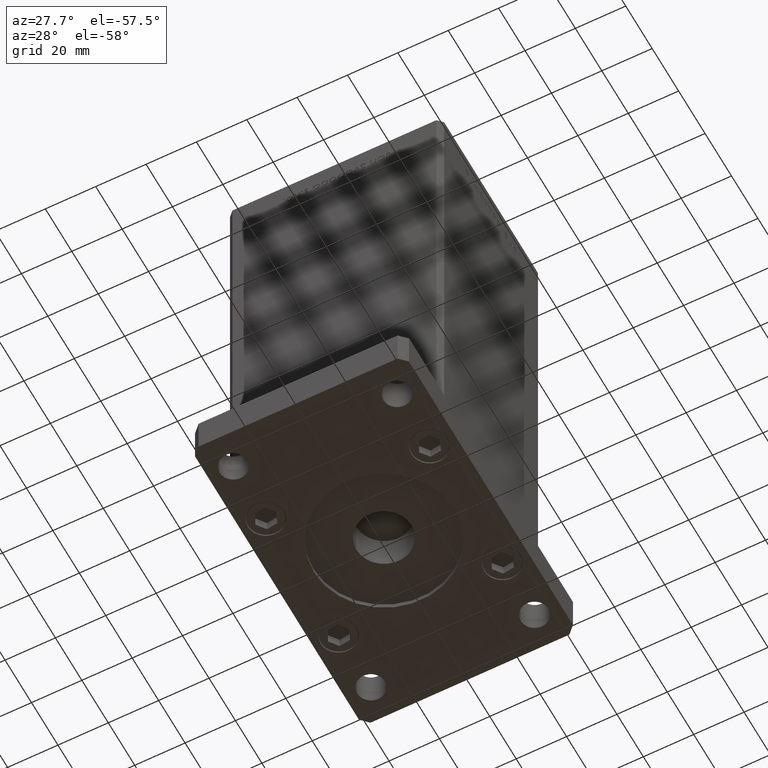
[diagram: clean part render]
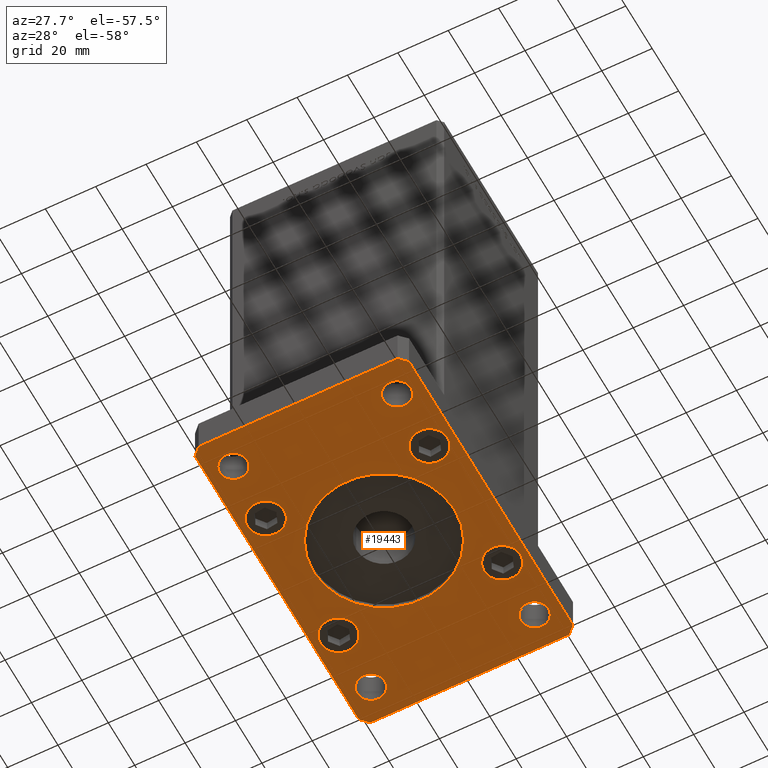
[diagram: same view with one face highlighted and labeled with its STEP entity id]
A machine part, auxiliary view. The second image highlights one B-rep face of the part: STEP entity #19443.
In plain terms, the highlighted planar face has unit normal (0, 0, 1).
Its self-contained STEP definition (entity closure, byte-faithful):
#779 = CIRCLE ( 'NONE', #48958, 7.249999999999999112 ) ;
#994 = CARTESIAN_POINT ( 'NONE',  ( 26.99999999999998579, -52.00000000000000711, 0.000000000000000000 ) ) ;
#1794 = LINE ( 'NONE', #43536, #49735 ) ;
#2154 = CIRCLE ( 'NONE', #40904, 28.00000000000000000 ) ;
#2929 = DIRECTION ( 'NONE',  ( -0.7071067811865417996, 0.7071067811865532349, 0.000000000000000000 ) ) ;
#2958 = CARTESIAN_POINT ( 'NONE',  ( -32.49999999999997868, -52.00000000000000711, 0.000000000000000000 ) ) ;
#3119 = CARTESIAN_POINT ( 'NONE',  ( -42.49999999999999289, -62.00000000000001421, 0.000000000000000000 ) ) ;
#3304 = EDGE_CURVE ( 'NONE', #32831, #40988, #44434, .T. ) ;
#3753 = DIRECTION ( 'NONE',  ( 1.000000000000000000, 0.000000000000000000, 0.000000000000000000 ) ) ;
#3756 = CIRCLE ( 'NONE', #40771, 7.249999999999999112 ) ;
#4116 = LINE ( 'NONE', #37006, #27780 ) ;
#4453 = CARTESIAN_POINT ( 'NONE',  ( -37.99999999999997868, -52.00000000000000711, 0.000000000000000000 ) ) ;
#5466 = ORIENTED_EDGE ( 'NONE', *, *, #45560, .T. ) ;
#5491 = EDGE_CURVE ( 'NONE', #21834, #17265, #1794, .T. ) ;
#5503 = VERTEX_POINT ( 'NONE', #39514 ) ;
#6260 = CARTESIAN_POINT ( 'NONE',  ( 32.50000000000000000, -27.50000000000000000, 0.000000000000000000 ) ) ;
#6293 = VERTEX_POINT ( 'NONE', #9181 ) ;
#6425 = DIRECTION ( 'NONE',  ( 0.000000000000000000, 0.000000000000000000, 1.000000000000000000 ) ) ;
#6491 = AXIS2_PLACEMENT_3D ( 'NONE', #17601, #29717, #46720 ) ;
#6907 = EDGE_LOOP ( 'NONE', ( #31100, #13431 ) ) ;
#7139 = CARTESIAN_POINT ( 'NONE',  ( 0.000000000000000000, 0.000000000000000000, 0.000000000000000000 ) ) ;
#7246 = DIRECTION ( 'NONE',  ( 0.000000000000000000, 0.000000000000000000, 1.000000000000000000 ) ) ;
#7254 = VERTEX_POINT ( 'NONE', #32330 ) ;
#7376 = CARTESIAN_POINT ( 'NONE',  ( 32.50000000000000000, 27.50000000000000000, 0.000000000000000000 ) ) ;
#7396 = FACE_OUTER_BOUND ( 'NONE', #26259, .T. ) ;
#7446 = AXIS2_PLACEMENT_3D ( 'NONE', #6260, #26726, #34317 ) ;
#7884 = CARTESIAN_POINT ( 'NONE',  ( 42.50000000000000000, -61.99999999999988631, 0.000000000000000000 ) ) ;
#8143 = DIRECTION ( 'NONE',  ( 0.000000000000000000, 0.000000000000000000, 1.000000000000000000 ) ) ;
#8318 = CARTESIAN_POINT ( 'NONE',  ( -39.50000000000000000, -65.00000000000000000, 0.000000000000000000 ) ) ;
#9041 = CIRCLE ( 'NONE', #39185, 5.499999999999991118 ) ;
#9181 = CARTESIAN_POINT ( 'NONE',  ( -42.49999999999999289, -62.00000000000001421, 0.000000000000000000 ) ) ;
#9239 = EDGE_CURVE ( 'NONE', #10415, #38625, #779, .T. ) ;
#9363 = VERTEX_POINT ( 'NONE', #30514 ) ;
#9391 = ORIENTED_EDGE ( 'NONE', *, *, #52211, .T. ) ;
#9773 = DIRECTION ( 'NONE',  ( 1.000000000000000000, 0.000000000000000000, 0.000000000000000000 ) ) ;
#9800 = VERTEX_POINT ( 'NONE', #8318 ) ;
#10366 = ORIENTED_EDGE ( 'NONE', *, *, #39784, .T. ) ;
#10415 = VERTEX_POINT ( 'NONE', #14556 ) ;
#11176 = DIRECTION ( 'NONE',  ( 0.000000000000000000, 0.000000000000000000, 1.000000000000000000 ) ) ;
#11768 = CIRCLE ( 'NONE', #12611, 5.499999999999998224 ) ;
#11964 = CIRCLE ( 'NONE', #15426, 5.499999999999994671 ) ;
#11997 = VERTEX_POINT ( 'NONE', #51012 ) ;
#12457 = LINE ( 'NONE', #7884, #38464 ) ;
#12611 = AXIS2_PLACEMENT_3D ( 'NONE', #50780, #30249, #9773 ) ;
#12801 = DIRECTION ( 'NONE',  ( 0.000000000000000000, 0.000000000000000000, 1.000000000000000000 ) ) ;
#12951 = CARTESIAN_POINT ( 'NONE',  ( -38.00000000000000000, 52.00000000000000000, 0.000000000000000000 ) ) ;
#12959 = CARTESIAN_POINT ( 'NONE',  ( -32.50000000000000000, -27.50000000000000000, 0.000000000000000000 ) ) ;
#13431 = ORIENTED_EDGE ( 'NONE', *, *, #37630, .T. ) ;
#13563 = VERTEX_POINT ( 'NONE', #32495 ) ;
#13794 = EDGE_LOOP ( 'NONE', ( #44992, #25223 ) ) ;
#13918 = VECTOR ( 'NONE', #52173, 1000.000000000000000 ) ;
#14469 = EDGE_LOOP ( 'NONE', ( #27217, #49322 ) ) ;
#14472 = CARTESIAN_POINT ( 'NONE',  ( 25.25000000000000000, -27.50000000000000000, 0.000000000000000000 ) ) ;
#14556 = CARTESIAN_POINT ( 'NONE',  ( 39.75000000000000000, 27.50000000000000000, 0.000000000000000000 ) ) ;
#15316 = CARTESIAN_POINT ( 'NONE',  ( 42.50000000000000000, 62.00000000000000711, 0.000000000000000000 ) ) ;
#15426 = AXIS2_PLACEMENT_3D ( 'NONE', #36276, #52740, #24125 ) ;
#15481 = DIRECTION ( 'NONE',  ( 0.000000000000000000, 0.000000000000000000, 1.000000000000000000 ) ) ;
#15499 = PLANE ( 'NONE',  #45703 ) ;
#15554 = EDGE_LOOP ( 'NONE', ( #29319, #26974 ) ) ;
#15621 = CARTESIAN_POINT ( 'NONE',  ( 39.50000000000001421, -64.99999999999988631, 0.000000000000000000 ) ) ;
#15700 = CARTESIAN_POINT ( 'NONE',  ( 37.99999999999999289, 51.99999999999999289, 0.000000000000000000 ) ) ;
#15723 = CARTESIAN_POINT ( 'NONE',  ( 27.00000000000001421, 51.99999999999999289, 0.000000000000000000 ) ) ;
#16073 = EDGE_CURVE ( 'NONE', #6293, #9800, #28698, .T. ) ;
#16090 = ORIENTED_EDGE ( 'NONE', *, *, #44342, .F. ) ;
#16148 = VERTEX_POINT ( 'NONE', #4453 ) ;
#16857 = CIRCLE ( 'NONE', #42672, 7.249999999999999112 ) ;
#16859 = LINE ( 'NONE', #17661, #40970 ) ;
#17004 = DIRECTION ( 'NONE',  ( 1.000000000000000000, 0.000000000000000000, 0.000000000000000000 ) ) ;
#17265 = VERTEX_POINT ( 'NONE', #45178 ) ;
#17309 = CARTESIAN_POINT ( 'NONE',  ( 0.000000000000000000, 0.000000000000000000, 0.000000000000000000 ) ) ;
#17601 = CARTESIAN_POINT ( 'NONE',  ( 32.49999999999997868, -52.00000000000000711, 0.000000000000000000 ) ) ;
#17661 = CARTESIAN_POINT ( 'NONE',  ( -39.50000000000000000, -65.00000000000000000, 0.000000000000000000 ) ) ;
#17782 = CIRCLE ( 'NONE', #32429, 7.249999999999999112 ) ;
#17856 = VECTOR ( 'NONE', #19174, 1000.000000000000114 ) ;
#17857 = ORIENTED_EDGE ( 'NONE', *, *, #31546, .T. ) ;
#18461 = CARTESIAN_POINT ( 'NONE',  ( 0.000000000000000000, 0.000000000000000000, 0.000000000000000000 ) ) ;
#19174 = DIRECTION ( 'NONE',  ( 0.7071067811865459074, 0.7071067811865491270, 0.000000000000000000 ) ) ;
#19443 = ADVANCED_FACE ( 'NONE', ( #20322, #7396, #48937, #36789, #44078, #48401, #31397, #28418, #35728, #27347 ), #15499, .F. ) ;
#19534 = AXIS2_PLACEMENT_3D ( 'NONE', #36970, #46116, #17004 ) ;
#19620 = DIRECTION ( 'NONE',  ( 1.000000000000000000, 0.000000000000000000, 0.000000000000000000 ) ) ;
#19900 = EDGE_CURVE ( 'NONE', #49456, #48532, #41381, .T. ) ;
#20085 = VERTEX_POINT ( 'NONE', #14472 ) ;
#20322 = FACE_BOUND ( 'NONE', #41123, .T. ) ;
#20532 = DIRECTION ( 'NONE',  ( 0.000000000000000000, 1.000000000000000000, 0.000000000000000000 ) ) ;
#20603 = DIRECTION ( 'NONE',  ( 1.000000000000000000, 0.000000000000000000, 0.000000000000000000 ) ) ;
#20675 = CARTESIAN_POINT ( 'NONE',  ( -32.50000000000000000, 52.00000000000000000, 0.000000000000000000 ) ) ;
#20835 = ORIENTED_EDGE ( 'NONE', *, *, #5491, .F. ) ;
#20900 = CARTESIAN_POINT ( 'NONE',  ( 42.50000000000000000, -61.99999999999988631, 0.000000000000000000 ) ) ;
#21546 = VERTEX_POINT ( 'NONE', #32184 ) ;
#21564 = DIRECTION ( 'NONE',  ( 1.000000000000000000, 0.000000000000000000, 0.000000000000000000 ) ) ;
#21613 = EDGE_CURVE ( 'NONE', #11997, #21834, #24351, .T. ) ;
#21834 = VERTEX_POINT ( 'NONE', #42922 ) ;
#22037 = AXIS2_PLACEMENT_3D ( 'NONE', #2958, #7246, #3753 ) ;
#23034 = VERTEX_POINT ( 'NONE', #42143 ) ;
#23314 = DIRECTION ( 'NONE',  ( 1.000000000000000000, 0.000000000000000000, -0.000000000000000000 ) ) ;
#23529 = CIRCLE ( 'NONE', #49372, 5.499999999999994671 ) ;
#23634 = AXIS2_PLACEMENT_3D ( 'NONE', #48127, #11176, #27609 ) ;
#23729 = CARTESIAN_POINT ( 'NONE',  ( 28.00000000000000000, 3.429011037612589276E-15, 0.000000000000000000 ) ) ;
#23732 = CIRCLE ( 'NONE', #27167, 7.249999999999999112 ) ;
#23859 = DIRECTION ( 'NONE',  ( 0.7071067811865483499, -0.7071067811865466846, 0.000000000000000000 ) ) ;
#24125 = DIRECTION ( 'NONE',  ( 1.000000000000000000, 0.000000000000000000, 0.000000000000000000 ) ) ;
#24196 = LINE ( 'NONE', #15316, #29700 ) ;
#24266 = ORIENTED_EDGE ( 'NONE', *, *, #16073, .F. ) ;
#24351 = LINE ( 'NONE', #35711, #13918 ) ;
#25223 = ORIENTED_EDGE ( 'NONE', *, *, #45627, .T. ) ;
#25904 = EDGE_CURVE ( 'NONE', #17265, #6293, #4116, .T. ) ;
#26259 = EDGE_LOOP ( 'NONE', ( #16090, #24266, #37446, #20835, #51276, #52690, #40164, #34053 ) ) ;
#26726 = DIRECTION ( 'NONE',  ( 0.000000000000000000, 0.000000000000000000, 1.000000000000000000 ) ) ;
#26832 = EDGE_CURVE ( 'NONE', #20085, #13563, #3756, .T. ) ;
#26974 = ORIENTED_EDGE ( 'NONE', *, *, #39512, .T. ) ;
#27143 = EDGE_CURVE ( 'NONE', #9363, #44975, #23529, .T. ) ;
#27167 = AXIS2_PLACEMENT_3D ( 'NONE', #12959, #33170, #21564 ) ;
#27207 = AXIS2_PLACEMENT_3D ( 'NONE', #18461, #29528, #50850 ) ;
#27217 = ORIENTED_EDGE ( 'NONE', *, *, #27280, .T. ) ;
#27280 = EDGE_CURVE ( 'NONE', #44975, #9363, #37316, .T. ) ;
#27297 = CIRCLE ( 'NONE', #19534, 7.249999999999999112 ) ;
#27347 = FACE_BOUND ( 'NONE', #13794, .T. ) ;
#27609 = DIRECTION ( 'NONE',  ( 1.000000000000000000, 0.000000000000000000, 0.000000000000000000 ) ) ;
#27703 = DIRECTION ( 'NONE',  ( 1.000000000000000000, 0.000000000000000000, 0.000000000000000000 ) ) ;
#27708 = DIRECTION ( 'NONE',  ( 0.000000000000000000, 0.000000000000000000, 1.000000000000000000 ) ) ;
#27780 = VECTOR ( 'NONE', #32409, 1000.000000000000000 ) ;
#27829 = AXIS2_PLACEMENT_3D ( 'NONE', #20675, #27708, #19620 ) ;
#27847 = EDGE_LOOP ( 'NONE', ( #28581, #5466 ) ) ;
#28330 = LINE ( 'NONE', #35633, #17856 ) ;
#28418 = FACE_BOUND ( 'NONE', #43040, .T. ) ;
#28581 = ORIENTED_EDGE ( 'NONE', *, *, #26832, .T. ) ;
#28615 = CARTESIAN_POINT ( 'NONE',  ( -39.75000000000000711, 27.50000000000000000, 0.000000000000000000 ) ) ;
#28698 = LINE ( 'NONE', #3119, #37979 ) ;
#29062 = DIRECTION ( 'NONE',  ( 0.000000000000000000, 0.000000000000000000, 1.000000000000000000 ) ) ;
#29108 = VERTEX_POINT ( 'NONE', #20900 ) ;
#29319 = ORIENTED_EDGE ( 'NONE', *, *, #46958, .T. ) ;
#29325 = DIRECTION ( 'NONE',  ( 1.000000000000000000, 0.000000000000000000, 0.000000000000000000 ) ) ;
#29521 = VERTEX_POINT ( 'NONE', #15621 ) ;
#29528 = DIRECTION ( 'NONE',  ( 0.000000000000000000, 0.000000000000000000, -1.000000000000000000 ) ) ;
#29700 = VECTOR ( 'NONE', #2929, 1000.000000000000000 ) ;
#29717 = DIRECTION ( 'NONE',  ( 0.000000000000000000, 0.000000000000000000, 1.000000000000000000 ) ) ;
#30249 = DIRECTION ( 'NONE',  ( 0.000000000000000000, 0.000000000000000000, 1.000000000000000000 ) ) ;
#30514 = CARTESIAN_POINT ( 'NONE',  ( -27.00000000000000711, 52.00000000000000000, 0.000000000000000000 ) ) ;
#31100 = ORIENTED_EDGE ( 'NONE', *, *, #19900, .T. ) ;
#31106 = EDGE_LOOP ( 'NONE', ( #17857, #50782 ) ) ;
#31322 = DIRECTION ( 'NONE',  ( 0.000000000000000000, 0.000000000000000000, 1.000000000000000000 ) ) ;
#31397 = FACE_BOUND ( 'NONE', #27847, .T. ) ;
#31403 = CIRCLE ( 'NONE', #23634, 7.249999999999999112 ) ;
#31467 = CIRCLE ( 'NONE', #6491, 5.499999999999998224 ) ;
#31478 = VERTEX_POINT ( 'NONE', #994 ) ;
#31546 = EDGE_CURVE ( 'NONE', #31884, #23034, #31403, .T. ) ;
#31884 = VERTEX_POINT ( 'NONE', #28615 ) ;
#32172 = ORIENTED_EDGE ( 'NONE', *, *, #40212, .T. ) ;
#32184 = CARTESIAN_POINT ( 'NONE',  ( 37.99999999999997868, -52.00000000000000711, 0.000000000000000000 ) ) ;
#32330 = CARTESIAN_POINT ( 'NONE',  ( -39.75000000000000000, -27.50000000000000000, 0.000000000000000000 ) ) ;
#32409 = DIRECTION ( 'NONE',  ( 2.238352872228137677E-16, -1.000000000000000000, 0.000000000000000000 ) ) ;
#32429 = AXIS2_PLACEMENT_3D ( 'NONE', #49048, #29062, #29325 ) ;
#32495 = CARTESIAN_POINT ( 'NONE',  ( 39.75000000000000000, -27.50000000000000000, 0.000000000000000000 ) ) ;
#32765 = AXIS2_PLACEMENT_3D ( 'NONE', #41022, #8143, #37793 ) ;
#32831 = VERTEX_POINT ( 'NONE', #23729 ) ;
#33170 = DIRECTION ( 'NONE',  ( 0.000000000000000000, 0.000000000000000000, 1.000000000000000000 ) ) ;
#34053 = ORIENTED_EDGE ( 'NONE', *, *, #46860, .F. ) ;
#34291 = DIRECTION ( 'NONE',  ( -1.000000000000000000, 0.000000000000000000, 0.000000000000000000 ) ) ;
#34317 = DIRECTION ( 'NONE',  ( 1.000000000000000000, 0.000000000000000000, 0.000000000000000000 ) ) ;
#35115 = DIRECTION ( 'NONE',  ( 1.000000000000000000, 0.000000000000000000, 0.000000000000000000 ) ) ;
#35633 = CARTESIAN_POINT ( 'NONE',  ( 39.50000000000001421, -64.99999999999988631, 0.000000000000000000 ) ) ;
#35711 = CARTESIAN_POINT ( 'NONE',  ( 39.50000000000002842, 65.00000000000002842, 0.000000000000000000 ) ) ;
#35728 = FACE_BOUND ( 'NONE', #31106, .T. ) ;
#35818 = DIRECTION ( 'NONE',  ( 1.000000000000000000, 0.000000000000000000, 0.000000000000000000 ) ) ;
#36276 = CARTESIAN_POINT ( 'NONE',  ( -32.49999999999997868, -52.00000000000000711, 0.000000000000000000 ) ) ;
#36506 = DIRECTION ( 'NONE',  ( 1.000000000000000000, 0.000000000000000000, 0.000000000000000000 ) ) ;
#36789 = FACE_BOUND ( 'NONE', #6907, .T. ) ;
#36829 = ORIENTED_EDGE ( 'NONE', *, *, #37540, .F. ) ;
#36970 = CARTESIAN_POINT ( 'NONE',  ( -32.50000000000000000, -27.50000000000000000, 0.000000000000000000 ) ) ;
#37006 = CARTESIAN_POINT ( 'NONE',  ( -42.50000000000002132, 62.00000000000000711, 0.000000000000000000 ) ) ;
#37316 = CIRCLE ( 'NONE', #27829, 5.499999999999994671 ) ;
#37446 = ORIENTED_EDGE ( 'NONE', *, *, #25904, .F. ) ;
#37540 = EDGE_CURVE ( 'NONE', #40988, #32831, #2154, .T. ) ;
#37630 = EDGE_CURVE ( 'NONE', #48532, #49456, #9041, .T. ) ;
#37740 = EDGE_CURVE ( 'NONE', #48316, #11997, #24196, .T. ) ;
#37793 = DIRECTION ( 'NONE',  ( 1.000000000000000000, 0.000000000000000000, 0.000000000000000000 ) ) ;
#37979 = VECTOR ( 'NONE', #23859, 1000.000000000000000 ) ;
#38425 = EDGE_LOOP ( 'NONE', ( #9391, #10366 ) ) ;
#38464 = VECTOR ( 'NONE', #20532, 1000.000000000000000 ) ;
#38604 = DIRECTION ( 'NONE',  ( 0.000000000000000000, 0.000000000000000000, -1.000000000000000000 ) ) ;
#38625 = VERTEX_POINT ( 'NONE', #53154 ) ;
#39151 = ORIENTED_EDGE ( 'NONE', *, *, #3304, .F. ) ;
#39185 = AXIS2_PLACEMENT_3D ( 'NONE', #40376, #52809, #27703 ) ;
#39220 = EDGE_CURVE ( 'NONE', #31478, #21546, #31467, .T. ) ;
#39512 = EDGE_CURVE ( 'NONE', #5503, #7254, #23732, .T. ) ;
#39514 = CARTESIAN_POINT ( 'NONE',  ( -25.25000000000000000, -27.50000000000000000, 0.000000000000000000 ) ) ;
#39784 = EDGE_CURVE ( 'NONE', #47782, #16148, #51313, .T. ) ;
#40004 = ORIENTED_EDGE ( 'NONE', *, *, #9239, .T. ) ;
#40164 = ORIENTED_EDGE ( 'NONE', *, *, #40975, .F. ) ;
#40212 = EDGE_CURVE ( 'NONE', #38625, #10415, #16857, .T. ) ;
#40376 = CARTESIAN_POINT ( 'NONE',  ( 32.50000000000000000, 51.99999999999999289, 0.000000000000000000 ) ) ;
#40745 = CARTESIAN_POINT ( 'NONE',  ( -26.99999999999998579, -52.00000000000000711, 0.000000000000000000 ) ) ;
#40771 = AXIS2_PLACEMENT_3D ( 'NONE', #50285, #12801, #20603 ) ;
#40904 = AXIS2_PLACEMENT_3D ( 'NONE', #17309, #38604, #34291 ) ;
#40970 = VECTOR ( 'NONE', #45436, 1000.000000000000000 ) ;
#40975 = EDGE_CURVE ( 'NONE', #29108, #48316, #12457, .T. ) ;
#40988 = VERTEX_POINT ( 'NONE', #49141 ) ;
#41022 = CARTESIAN_POINT ( 'NONE',  ( 32.50000000000000000, 51.99999999999999289, 0.000000000000000000 ) ) ;
#41123 = EDGE_LOOP ( 'NONE', ( #36829, #39151 ) ) ;
#41381 = CIRCLE ( 'NONE', #32765, 5.499999999999991118 ) ;
#42143 = CARTESIAN_POINT ( 'NONE',  ( -25.25000000000000711, 27.50000000000000000, 0.000000000000000000 ) ) ;
#42672 = AXIS2_PLACEMENT_3D ( 'NONE', #52114, #31322, #35115 ) ;
#42750 = DIRECTION ( 'NONE',  ( -0.7071067811865466846, -0.7071067811865483499, 0.000000000000000000 ) ) ;
#42922 = CARTESIAN_POINT ( 'NONE',  ( -39.50000000000003553, 65.00000000000000000, 0.000000000000000000 ) ) ;
#43040 = EDGE_LOOP ( 'NONE', ( #32172, #40004 ) ) ;
#43536 = CARTESIAN_POINT ( 'NONE',  ( -39.50000000000003553, 65.00000000000000000, 0.000000000000000000 ) ) ;
#43896 = CARTESIAN_POINT ( 'NONE',  ( -32.50000000000000000, 52.00000000000000000, 0.000000000000000000 ) ) ;
#44078 = FACE_BOUND ( 'NONE', #14469, .T. ) ;
#44342 = EDGE_CURVE ( 'NONE', #9800, #29521, #16859, .T. ) ;
#44434 = CIRCLE ( 'NONE', #27207, 28.00000000000000000 ) ;
#44673 = CARTESIAN_POINT ( 'NONE',  ( 42.50000000000000000, 62.00000000000000711, 0.000000000000000000 ) ) ;
#44975 = VERTEX_POINT ( 'NONE', #12951 ) ;
#44992 = ORIENTED_EDGE ( 'NONE', *, *, #39220, .T. ) ;
#45178 = CARTESIAN_POINT ( 'NONE',  ( -42.50000000000002132, 62.00000000000000711, 0.000000000000000000 ) ) ;
#45436 = DIRECTION ( 'NONE',  ( 1.000000000000000000, 1.405345600791337191E-15, 0.000000000000000000 ) ) ;
#45560 = EDGE_CURVE ( 'NONE', #13563, #20085, #51385, .T. ) ;
#45627 = EDGE_CURVE ( 'NONE', #21546, #31478, #11768, .T. ) ;
#45703 = AXIS2_PLACEMENT_3D ( 'NONE', #7139, #52462, #23314 ) ;
#46116 = DIRECTION ( 'NONE',  ( 0.000000000000000000, 0.000000000000000000, 1.000000000000000000 ) ) ;
#46122 = EDGE_CURVE ( 'NONE', #23034, #31884, #17782, .T. ) ;
#46720 = DIRECTION ( 'NONE',  ( 1.000000000000000000, 0.000000000000000000, 0.000000000000000000 ) ) ;
#46860 = EDGE_CURVE ( 'NONE', #29521, #29108, #28330, .T. ) ;
#46958 = EDGE_CURVE ( 'NONE', #7254, #5503, #27297, .T. ) ;
#47782 = VERTEX_POINT ( 'NONE', #40745 ) ;
#48127 = CARTESIAN_POINT ( 'NONE',  ( -32.50000000000000711, 27.50000000000000000, 0.000000000000000000 ) ) ;
#48316 = VERTEX_POINT ( 'NONE', #44673 ) ;
#48401 = FACE_BOUND ( 'NONE', #15554, .T. ) ;
#48532 = VERTEX_POINT ( 'NONE', #15700 ) ;
#48937 = FACE_BOUND ( 'NONE', #38425, .T. ) ;
#48958 = AXIS2_PLACEMENT_3D ( 'NONE', #7376, #15481, #36506 ) ;
#49048 = CARTESIAN_POINT ( 'NONE',  ( -32.50000000000000711, 27.50000000000000000, 0.000000000000000000 ) ) ;
#49141 = CARTESIAN_POINT ( 'NONE',  ( -28.00000000000000000, 0.000000000000000000, 0.000000000000000000 ) ) ;
#49322 = ORIENTED_EDGE ( 'NONE', *, *, #27143, .T. ) ;
#49372 = AXIS2_PLACEMENT_3D ( 'NONE', #43896, #6425, #35818 ) ;
#49456 = VERTEX_POINT ( 'NONE', #15723 ) ;
#49735 = VECTOR ( 'NONE', #42750, 1000.000000000000000 ) ;
#50285 = CARTESIAN_POINT ( 'NONE',  ( 32.50000000000000000, -27.50000000000000000, 0.000000000000000000 ) ) ;
#50780 = CARTESIAN_POINT ( 'NONE',  ( 32.49999999999997868, -52.00000000000000711, 0.000000000000000000 ) ) ;
#50782 = ORIENTED_EDGE ( 'NONE', *, *, #46122, .T. ) ;
#50850 = DIRECTION ( 'NONE',  ( -1.000000000000000000, 0.000000000000000000, 0.000000000000000000 ) ) ;
#51012 = CARTESIAN_POINT ( 'NONE',  ( 39.50000000000002842, 65.00000000000002842, 0.000000000000000000 ) ) ;
#51276 = ORIENTED_EDGE ( 'NONE', *, *, #21613, .F. ) ;
#51313 = CIRCLE ( 'NONE', #22037, 5.499999999999994671 ) ;
#51385 = CIRCLE ( 'NONE', #7446, 7.249999999999999112 ) ;
#52114 = CARTESIAN_POINT ( 'NONE',  ( 32.50000000000000000, 27.50000000000000000, 0.000000000000000000 ) ) ;
#52173 = DIRECTION ( 'NONE',  ( -1.000000000000000000, -3.513364001978340512E-16, 0.000000000000000000 ) ) ;
#52211 = EDGE_CURVE ( 'NONE', #16148, #47782, #11964, .T. ) ;
#52462 = DIRECTION ( 'NONE',  ( 0.000000000000000000, 0.000000000000000000, 1.000000000000000000 ) ) ;
#52690 = ORIENTED_EDGE ( 'NONE', *, *, #37740, .F. ) ;
#52740 = DIRECTION ( 'NONE',  ( 0.000000000000000000, 0.000000000000000000, 1.000000000000000000 ) ) ;
#52809 = DIRECTION ( 'NONE',  ( 0.000000000000000000, 0.000000000000000000, 1.000000000000000000 ) ) ;
#53154 = CARTESIAN_POINT ( 'NONE',  ( 25.25000000000000000, 27.50000000000000000, 0.000000000000000000 ) ) ;